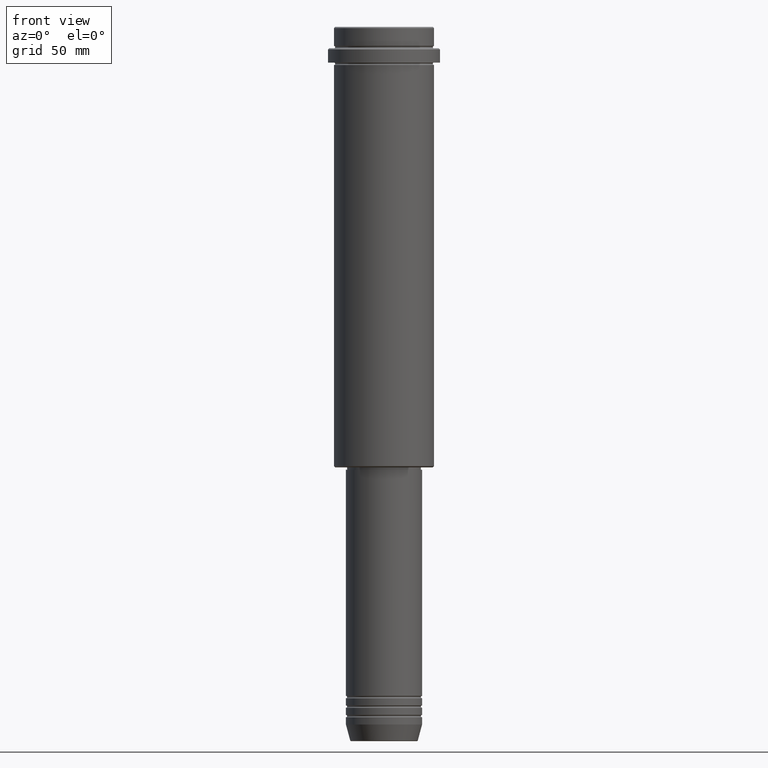
[diagram: clean part render]
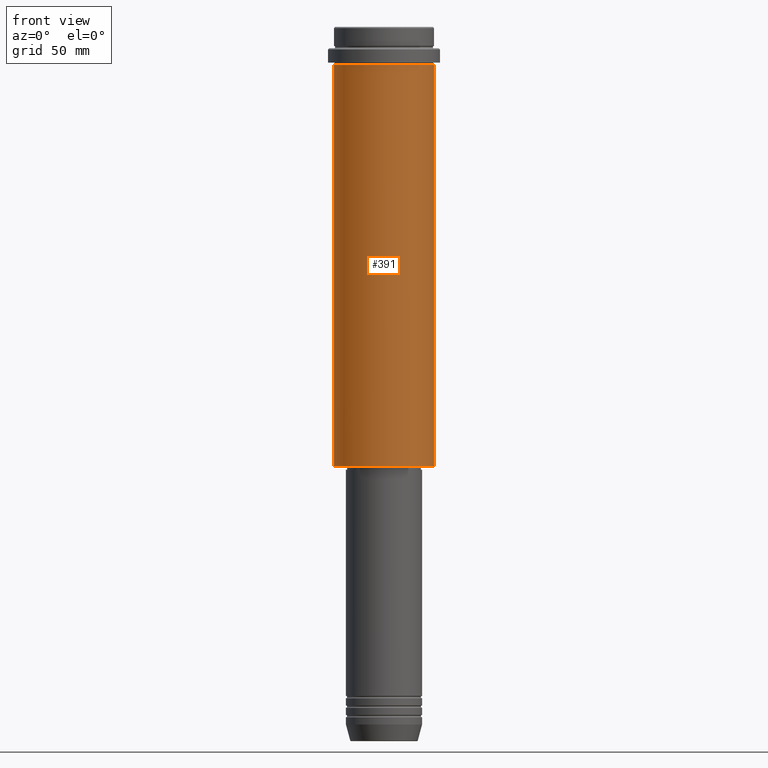
[diagram: same view with one face highlighted and labeled with its STEP entity id]
A machine part, front view. The second image highlights one B-rep face of the part: STEP entity #391.
In plain terms, the highlighted cylindrical surface (partial cylindrical patch) has radius 21 mm, axis along (-0, -0, 1).
Its self-contained STEP definition (entity closure, byte-faithful):
#75 = DIRECTION ( 'NONE',  ( -0.000000000000000000, -0.000000000000000000, 1.000000000000000000 ) ) ;
#110 = EDGE_CURVE ( 'NONE', #229, #881, #1372, .T. ) ;
#118 = EDGE_CURVE ( 'NONE', #1250, #525, #272, .T. ) ;
#167 = VECTOR ( 'NONE', #75, 1000.000000000000000 ) ;
#175 = DIRECTION ( 'NONE',  ( -0.000000000000000000, -0.000000000000000000, 1.000000000000000000 ) ) ;
#229 = VERTEX_POINT ( 'NONE', #952 ) ;
#250 = CIRCLE ( 'NONE', #488, 20.99999999999999645 ) ;
#259 = DIRECTION ( 'NONE',  ( 1.000000000000000000, 0.000000000000000000, 0.000000000000000000 ) ) ;
#272 = LINE ( 'NONE', #1241, #953 ) ;
#284 = ORIENTED_EDGE ( 'NONE', *, *, #520, .T. ) ;
#297 = DIRECTION ( 'NONE',  ( -0.000000000000000000, -0.000000000000000000, 1.000000000000000000 ) ) ;
#352 = CIRCLE ( 'NONE', #1138, 20.99999999999999645 ) ;
#391 = ADVANCED_FACE ( 'NONE', ( #1335 ), #690, .T. ) ;
#394 = ORIENTED_EDGE ( 'NONE', *, *, #118, .F. ) ;
#488 = AXIS2_PLACEMENT_3D ( 'NONE', #990, #565, #259 ) ;
#520 = EDGE_CURVE ( 'NONE', #1250, #229, #352, .T. ) ;
#525 = VERTEX_POINT ( 'NONE', #597 ) ;
#565 = DIRECTION ( 'NONE',  ( -0.000000000000000000, -0.000000000000000000, 1.000000000000000000 ) ) ;
#597 = CARTESIAN_POINT ( 'NONE',  ( -20.99999999999999645, 2.571758278209441267E-15, -16.00000000000000355 ) ) ;
#606 = EDGE_LOOP ( 'NONE', ( #394, #284, #1348, #860 ) ) ;
#690 = CYLINDRICAL_SURFACE ( 'NONE', #1163, 20.99999999999999645 ) ;
#801 = CARTESIAN_POINT ( 'NONE',  ( 0.000000000000000000, 0.000000000000000000, -184.4999999999999432 ) ) ;
#860 = ORIENTED_EDGE ( 'NONE', *, *, #1239, .F. ) ;
#881 = VERTEX_POINT ( 'NONE', #1187 ) ;
#919 = CARTESIAN_POINT ( 'NONE',  ( 20.99999999999999645, 0.000000000000000000, 0.000000000000000000 ) ) ;
#929 = DIRECTION ( 'NONE',  ( -1.000000000000000000, 0.000000000000000000, 0.000000000000000000 ) ) ;
#952 = CARTESIAN_POINT ( 'NONE',  ( 20.99999999999999645, 0.000000000000000000, -184.4999999999999432 ) ) ;
#953 = VECTOR ( 'NONE', #297, 1000.000000000000000 ) ;
#990 = CARTESIAN_POINT ( 'NONE',  ( 0.000000000000000000, 0.000000000000000000, -16.00000000000000355 ) ) ;
#992 = DIRECTION ( 'NONE',  ( -0.000000000000000000, -0.000000000000000000, 1.000000000000000000 ) ) ;
#1004 = CARTESIAN_POINT ( 'NONE',  ( 0.000000000000000000, 0.000000000000000000, 0.000000000000000000 ) ) ;
#1110 = CARTESIAN_POINT ( 'NONE',  ( -20.99999999999999645, 2.571758278209441267E-15, -184.4999999999999432 ) ) ;
#1138 = AXIS2_PLACEMENT_3D ( 'NONE', #801, #175, #929 ) ;
#1163 = AXIS2_PLACEMENT_3D ( 'NONE', #1004, #992, #1209 ) ;
#1187 = CARTESIAN_POINT ( 'NONE',  ( 20.99999999999999645, 0.000000000000000000, -16.00000000000000355 ) ) ;
#1209 = DIRECTION ( 'NONE',  ( 1.000000000000000000, 0.000000000000000000, 0.000000000000000000 ) ) ;
#1239 = EDGE_CURVE ( 'NONE', #525, #881, #250, .T. ) ;
#1241 = CARTESIAN_POINT ( 'NONE',  ( -20.99999999999999645, 2.571758278209441267E-15, 0.000000000000000000 ) ) ;
#1250 = VERTEX_POINT ( 'NONE', #1110 ) ;
#1335 = FACE_OUTER_BOUND ( 'NONE', #606, .T. ) ;
#1348 = ORIENTED_EDGE ( 'NONE', *, *, #110, .T. ) ;
#1372 = LINE ( 'NONE', #919, #167 ) ;